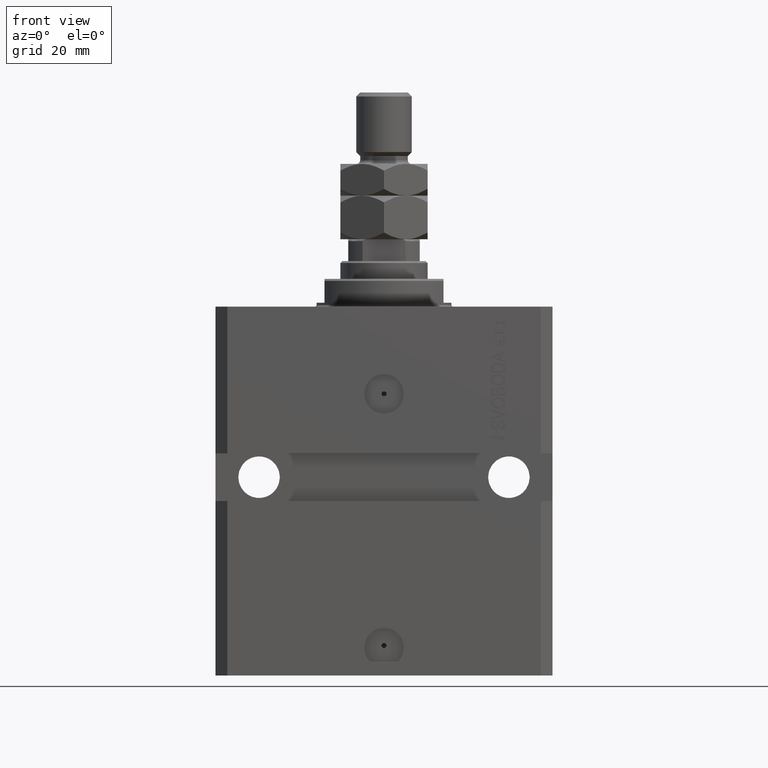
[diagram: clean part render]
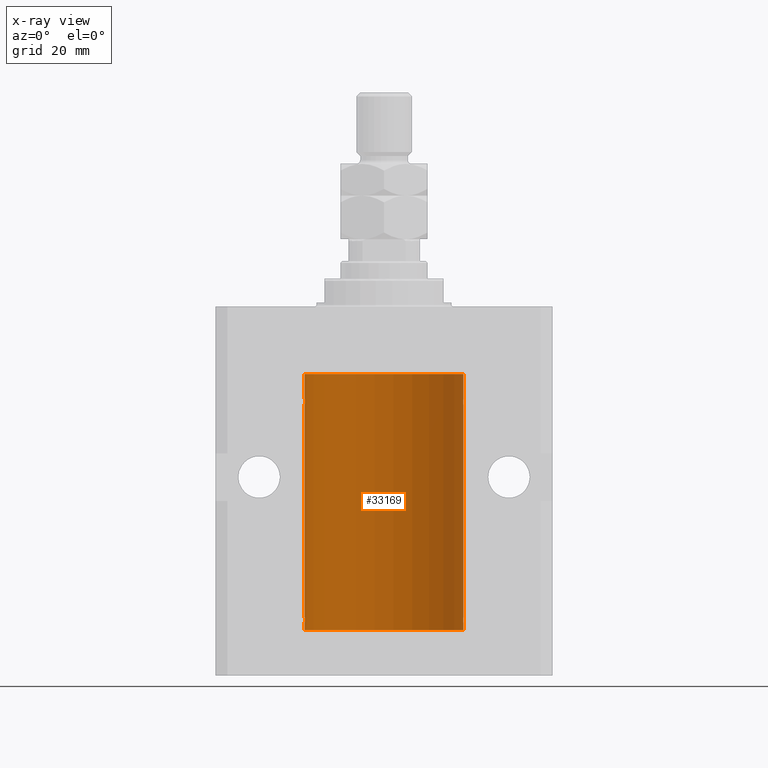
[diagram: x-ray — body ghosted, one internal face saturated and labeled with its STEP entity id]
A machine part, front view, then the same camera in x-ray: the body is ghosted and one INTERNAL B-rep face — a face not visible from any outside direction — is saturated and labeled: STEP entity #33169.
In plain terms, the highlighted cylindrical surface (partial cylindrical patch) has radius 20 mm, axis along (0, 0, 1).
Its self-contained STEP definition (entity closure, byte-faithful):
#40 = VERTEX_POINT ( 'NONE', #42627 ) ;
#138 = CARTESIAN_POINT ( 'NONE',  ( 19.99023198964909298, 0.6250000000081508134, -23.99999999999910472 ) ) ;
#925 = CARTESIAN_POINT ( 'NONE',  ( -19.99023380173166231, 0.6249420416828462832, -23.83670793056396064 ) ) ;
#994 = CYLINDRICAL_SURFACE ( 'NONE', #39639, 20.00000000000000000 ) ;
#1484 = CARTESIAN_POINT ( 'NONE',  ( -20.00000000000010303, 3.580159286679549072E-13, -79.62500000000332534 ) ) ;
#1937 = CARTESIAN_POINT ( 'NONE',  ( -20.00000000000000000, 2.449293598294706513E-15, -81.59999999999999432 ) ) ;
#2089 = CARTESIAN_POINT ( 'NONE',  ( 19.99023198964936299, 0.6249999999995806688, -78.83696384779808852 ) ) ;
#2495 = CIRCLE ( 'NONE', #32960, 20.00000000000000000 ) ;
#2841 = CARTESIAN_POINT ( 'NONE',  ( 19.99999999999999645, 0.1631318418333158327, -78.37500000000015632 ) ) ;
#3412 = CARTESIAN_POINT ( 'NONE',  ( 20.00000000000010303, 3.555666340528858977E-13, -23.37499999999667111 ) ) ;
#3795 = CARTESIAN_POINT ( 'NONE',  ( 19.99023198964909298, 0.6250000000081574747, -78.99999999999911893 ) ) ;
#4526 = DIRECTION ( 'NONE',  ( -0.000000000000000000, -0.000000000000000000, 1.000000000000000000 ) ) ;
#4756 = CARTESIAN_POINT ( 'NONE',  ( -19.99947377218718003, 0.1636439183262797525, -78.39126364004653169 ) ) ;
#4761 = FACE_OUTER_BOUND ( 'NONE', #22795, .T. ) ;
#4942 = CARTESIAN_POINT ( 'NONE',  ( -19.99766197842594906, 0.3150331617867667688, -23.45402070102505476 ) ) ;
#4978 = ORIENTED_EDGE ( 'NONE', *, *, #44810, .T. ) ;
#5005 = CARTESIAN_POINT ( 'NONE',  ( -19.99769349528941831, 0.3253804398728615266, -79.55855820727680339 ) ) ;
#6228 = VERTEX_POINT ( 'NONE', #47035 ) ;
#6354 = CARTESIAN_POINT ( 'NONE',  ( 19.99023198964909298, 0.6250000000081574747, -78.99999999999911893 ) ) ;
#6644 = EDGE_CURVE ( 'NONE', #48494, #6228, #2495, .T. ) ;
#6867 = DIRECTION ( 'NONE',  ( 1.000000000000000000, 0.000000000000000000, 0.000000000000000000 ) ) ;
#7110 = CARTESIAN_POINT ( 'NONE',  ( 0.000000000000000000, 0.000000000000000000, -81.59999999999999432 ) ) ;
#7122 = VECTOR ( 'NONE', #14378, 1000.000000000000000 ) ;
#7804 = CARTESIAN_POINT ( 'NONE',  ( 19.99638788807192924, 0.3844440352705359998, -79.49948058986481669 ) ) ;
#8201 = ORIENTED_EDGE ( 'NONE', *, *, #39548, .T. ) ;
#8530 = CARTESIAN_POINT ( 'NONE',  ( -19.99999999999999289, 0.08259581631026131909, -78.37499999999998579 ) ) ;
#9018 = CARTESIAN_POINT ( 'NONE',  ( -19.99766197842594551, 0.3150331617867603295, -78.45402070102504410 ) ) ;
#9205 = DIRECTION ( 'NONE',  ( -0.000000000000000000, -0.000000000000000000, 1.000000000000000000 ) ) ;
#10191 = CARTESIAN_POINT ( 'NONE',  ( -20.00000000000000000, 2.449293598294706513E-15, -81.59999999999999432 ) ) ;
#10235 = ORIENTED_EDGE ( 'NONE', *, *, #45649, .T. ) ;
#10545 = CARTESIAN_POINT ( 'NONE',  ( -20.00000000000000000, 2.449293598294706513E-15, -81.59999999999999432 ) ) ;
#10654 = CARTESIAN_POINT ( 'NONE',  ( 19.99947351343144675, 0.1636818329565319363, -24.60872855715643936 ) ) ;
#10842 = LINE ( 'NONE', #34195, #7122 ) ;
#10928 = VECTOR ( 'NONE', #9205, 1000.000000000000000 ) ;
#11328 = VERTEX_POINT ( 'NONE', #49406 ) ;
#11396 = CARTESIAN_POINT ( 'NONE',  ( 19.99999999999999645, 0.08261455565447869964, -24.62499999999998579 ) ) ;
#12299 = CARTESIAN_POINT ( 'NONE',  ( -20.00000000000000355, 0.1631688615953343080, -79.62499999999984368 ) ) ;
#12481 = CARTESIAN_POINT ( 'NONE',  ( -20.00000000000010303, 3.580159278407742946E-13, -24.62500000000332889 ) ) ;
#12772 = CARTESIAN_POINT ( 'NONE',  ( 0.000000000000000000, 0.000000000000000000, -17.00000000000000000 ) ) ;
#13259 = CARTESIAN_POINT ( 'NONE',  ( 20.00000000000000000, 0.000000000000000000, -81.59999999999999432 ) ) ;
#13512 = VERTEX_POINT ( 'NONE', #29579 ) ;
#13631 = CARTESIAN_POINT ( 'NONE',  ( 20.00000000000010303, 3.555666352936568165E-13, -78.37499999999667466 ) ) ;
#13691 = DIRECTION ( 'NONE',  ( -0.000000000000000000, -0.000000000000000000, 1.000000000000000000 ) ) ;
#14139 = VERTEX_POINT ( 'NONE', #41747 ) ;
#14270 = DIRECTION ( 'NONE',  ( -0.000000000000000000, -0.000000000000000000, 1.000000000000000000 ) ) ;
#14378 = DIRECTION ( 'NONE',  ( -0.000000000000000000, -0.000000000000000000, 1.000000000000000000 ) ) ;
#15059 = ORIENTED_EDGE ( 'NONE', *, *, #29766, .F. ) ;
#15488 = EDGE_CURVE ( 'NONE', #24688, #33742, #17039, .T. ) ;
#16265 = CARTESIAN_POINT ( 'NONE',  ( -19.99023018003212471, 0.6250578794725500931, -24.16284809704970371 ) ) ;
#16330 = CARTESIAN_POINT ( 'NONE',  ( -19.99023380173166231, 0.6249420416828449509, -78.83670793056396064 ) ) ;
#16512 = CARTESIAN_POINT ( 'NONE',  ( -19.99256581701871482, 0.5573276956902001311, -23.67348565770948809 ) ) ;
#16578 = CARTESIAN_POINT ( 'NONE',  ( -19.99638934703457238, 0.3843678041337651452, -78.50046362978099523 ) ) ;
#16699 = CARTESIAN_POINT ( 'NONE',  ( 19.99023198964909298, 0.6250000000081574747, -78.99999999999911893 ) ) ;
#16952 = EDGE_CURVE ( 'NONE', #32065, #40, #36194, .T. ) ;
#17039 = B_SPLINE_CURVE_WITH_KNOTS ( 'NONE', 3,
 ( #38909, #8530, #4756, #9018, #16578, #24101, #16330, #31627, #24355, #5005, #12299, #1484 ),
 .UNSPECIFIED., .F., .F.,
 ( 4, 2, 2, 2, 2, 4 ),
 ( 1.522880481566060999E-18, 0.0002442693137305179392, 0.0004885386274610343605, 0.0009770772549220966934, 0.001465615882383158918, 0.001954154509844221576 ),
 .UNSPECIFIED. ) ;
#17242 = B_SPLINE_CURVE_WITH_KNOTS ( 'NONE', 3,
 ( #138, #26786, #41836, #34539, #33565, #3412 ),
 .UNSPECIFIED., .F., .F.,
 ( 4, 2, 4 ),
 ( 0.0009772989342736214998, 0.001465726722058845102, 0.001954154509844068920 ),
 .UNSPECIFIED. ) ;
#17305 = DIRECTION ( 'NONE',  ( 0.000000000000000000, 0.000000000000000000, 1.000000000000000000 ) ) ;
#17741 = ORIENTED_EDGE ( 'NONE', *, *, #37810, .F. ) ;
#17986 = LINE ( 'NONE', #10191, #21623 ) ;
#18733 = VECTOR ( 'NONE', #30372, 1000.000000000000000 ) ;
#19615 = CARTESIAN_POINT ( 'NONE',  ( 19.99947351343144319, 0.1636818329565372654, -79.60872855715646779 ) ) ;
#19784 = CARTESIAN_POINT ( 'NONE',  ( -19.99638934703457593, 0.3843678041337688644, -23.50046362978100944 ) ) ;
#20093 = CARTESIAN_POINT ( 'NONE',  ( 0.000000000000000000, 0.000000000000000000, -81.59999999999999432 ) ) ;
#20552 = ORIENTED_EDGE ( 'NONE', *, *, #36848, .T. ) ;
#21410 = CIRCLE ( 'NONE', #45493, 20.00000000000000000 ) ;
#21529 = LINE ( 'NONE', #44640, #10928 ) ;
#21623 = VECTOR ( 'NONE', #13691, 1000.000000000000000 ) ;
#21939 = CARTESIAN_POINT ( 'NONE',  ( 19.99769474220011034, 0.3253030616682413001, -78.44140633897630721 ) ) ;
#21977 = CARTESIAN_POINT ( 'NONE',  ( 20.00000000000000000, 1.042771508482559297E-15, -24.62500000000000000 ) ) ;
#22229 = CARTESIAN_POINT ( 'NONE',  ( 19.99766100389832957, 0.3150982863324730543, -24.54594438241278453 ) ) ;
#22470 = CARTESIAN_POINT ( 'NONE',  ( 19.99638788807192924, 0.3844440352705356112, -24.49948058986480603 ) ) ;
#22795 = EDGE_LOOP ( 'NONE', ( #49395, #17741, #20552, #4978, #35064, #10235, #47956, #8201, #22998, #32330, #43364, #48487, #15059, #41424 ) ) ;
#22967 = CARTESIAN_POINT ( 'NONE',  ( 19.99023198964933812, 0.6250000000002681189, -24.16311014829328130 ) ) ;
#22998 = ORIENTED_EDGE ( 'NONE', *, *, #30047, .T. ) ;
#23791 = CARTESIAN_POINT ( 'NONE',  ( -20.00000000000000000, -1.124177324826063808E-14, -78.37500000000000000 ) ) ;
#23801 = CARTESIAN_POINT ( 'NONE',  ( -19.99999999999999645, 0.08259581631026780002, -23.37500000000000000 ) ) ;
#24101 = CARTESIAN_POINT ( 'NONE',  ( -19.99256581701871838, 0.5573276956901996870, -78.67348565770949165 ) ) ;
#24355 = CARTESIAN_POINT ( 'NONE',  ( -19.99253506710754991, 0.5587120480776742726, -79.32511620830248944 ) ) ;
#24688 = VERTEX_POINT ( 'NONE', #23791 ) ;
#25072 = CARTESIAN_POINT ( 'NONE',  ( -20.00000000000010303, 3.580159278407742946E-13, -24.62500000000332889 ) ) ;
#25221 = B_SPLINE_CURVE_WITH_KNOTS ( 'NONE', 3,
 ( #41724, #42465, #19615, #46501, #7804, #34428, #27393, #3795 ),
 .UNSPECIFIED., .F., .F.,
 ( 4, 2, 2, 4 ),
 ( 3.944467879762244826E-18, 0.0002443247335684012008, 0.0004886494671367983900, 0.0009772989342736221503 ),
 .UNSPECIFIED. ) ;
#26735 = CARTESIAN_POINT ( 'NONE',  ( 19.99023198964909298, 0.6250000000081508134, -23.99999999999910472 ) ) ;
#26786 = CARTESIAN_POINT ( 'NONE',  ( 19.99023198964935588, 0.6249999999995746736, -23.83696384779806721 ) ) ;
#27393 = CARTESIAN_POINT ( 'NONE',  ( 19.99023198964934167, 0.6250000000002757794, -79.16311014829327064 ) ) ;
#28059 = CARTESIAN_POINT ( 'NONE',  ( -20.00000000000000000, -2.867584836844214272E-15, -23.37500000000000000 ) ) ;
#29579 = CARTESIAN_POINT ( 'NONE',  ( 20.00000000000000000, -4.058908006348821872E-15, -79.62500000000000000 ) ) ;
#29766 = EDGE_CURVE ( 'NONE', #24688, #30848, #33157, .T. ) ;
#30047 = EDGE_CURVE ( 'NONE', #14139, #48494, #43412, .T. ) ;
#30372 = DIRECTION ( 'NONE',  ( -0.000000000000000000, -0.000000000000000000, 1.000000000000000000 ) ) ;
#30848 = VERTEX_POINT ( 'NONE', #25072 ) ;
#31565 = CARTESIAN_POINT ( 'NONE',  ( -20.00000000000000000, 0.1631688615953320320, -24.62499999999985434 ) ) ;
#31627 = CARTESIAN_POINT ( 'NONE',  ( -19.99023018003212471, 0.6250578794725522025, -79.16284809704971792 ) ) ;
#32065 = VERTEX_POINT ( 'NONE', #48348 ) ;
#32330 = ORIENTED_EDGE ( 'NONE', *, *, #6644, .T. ) ;
#32960 = AXIS2_PLACEMENT_3D ( 'NONE', #12772, #17305, #47456 ) ;
#32993 = CARTESIAN_POINT ( 'NONE',  ( 20.00000000000000000, 0.000000000000000000, -81.59999999999999432 ) ) ;
#33157 = LINE ( 'NONE', #10545, #18733 ) ;
#33169 = ADVANCED_FACE ( 'NONE', ( #4761 ), #994, .F. ) ;
#33565 = CARTESIAN_POINT ( 'NONE',  ( 19.99999999999999645, 0.1631318418333146114, -23.37500000000016698 ) ) ;
#33648 = VERTEX_POINT ( 'NONE', #1937 ) ;
#33742 = VERTEX_POINT ( 'NONE', #38008 ) ;
#34195 = CARTESIAN_POINT ( 'NONE',  ( 20.00000000000000000, 0.000000000000000000, -81.59999999999999432 ) ) ;
#34218 = VERTEX_POINT ( 'NONE', #37130 ) ;
#34428 = CARTESIAN_POINT ( 'NONE',  ( 19.99256353007439202, 0.5574106582031174151, -79.32639035180115172 ) ) ;
#34539 = CARTESIAN_POINT ( 'NONE',  ( 19.99769474220010679, 0.3253030616682399678, -23.44140633897632142 ) ) ;
#34731 = VECTOR ( 'NONE', #14270, 1000.000000000000000 ) ;
#35064 = ORIENTED_EDGE ( 'NONE', *, *, #47587, .T. ) ;
#35090 = CARTESIAN_POINT ( 'NONE',  ( -19.99253506710754991, 0.5587120480776751608, -24.32511620830248589 ) ) ;
#35579 = CARTESIAN_POINT ( 'NONE',  ( -19.99769349528941120, 0.3253804398728645242, -24.55855820727680339 ) ) ;
#36194 = B_SPLINE_CURVE_WITH_KNOTS ( 'NONE', 3,
 ( #21977, #11396, #10654, #22229, #22470, #49105, #22967, #26735 ),
 .UNSPECIFIED., .F., .F.,
 ( 4, 2, 2, 4 ),
 ( 1.013370767385449693E-18, 0.0002443247335684061339, 0.0004886494671368111836, 0.0009772989342736214998 ),
 .UNSPECIFIED. ) ;
#36231 = CARTESIAN_POINT ( 'NONE',  ( 19.99253733128256627, 0.5586305947779004466, -78.67476036735259015 ) ) ;
#36440 = EDGE_CURVE ( 'NONE', #34218, #30848, #39594, .T. ) ;
#36503 = EDGE_CURVE ( 'NONE', #34218, #6228, #21529, .T. ) ;
#36848 = EDGE_CURVE ( 'NONE', #43367, #13512, #43823, .T. ) ;
#37130 = CARTESIAN_POINT ( 'NONE',  ( -20.00000000000000000, -2.867584836844214272E-15, -23.37500000000000000 ) ) ;
#37252 = DIRECTION ( 'NONE',  ( 0.000000000000000000, 0.000000000000000000, 1.000000000000000000 ) ) ;
#37565 = CARTESIAN_POINT ( 'NONE',  ( 20.00000000000000000, 0.000000000000000000, -17.00000000000000000 ) ) ;
#37810 = EDGE_CURVE ( 'NONE', #43367, #33648, #21410, .T. ) ;
#38008 = CARTESIAN_POINT ( 'NONE',  ( -20.00000000000010303, 3.580159286679549072E-13, -79.62500000000332534 ) ) ;
#38909 = CARTESIAN_POINT ( 'NONE',  ( -20.00000000000000000, -1.124177324826063808E-14, -78.37500000000000000 ) ) ;
#39537 = DIRECTION ( 'NONE',  ( -0.000000000000000000, -0.000000000000000000, 1.000000000000000000 ) ) ;
#39548 = EDGE_CURVE ( 'NONE', #40, #14139, #17242, .T. ) ;
#39594 = B_SPLINE_CURVE_WITH_KNOTS ( 'NONE', 3,
 ( #28059, #23801, #39597, #4942, #19784, #16512, #925, #16265, #35090, #35579, #31565, #12481 ),
 .UNSPECIFIED., .F., .F.,
 ( 4, 2, 2, 2, 2, 4 ),
 ( 5.848927291235706941E-19, 0.0002442693137305304075, 0.0004885386274610601645, 0.0009770772549221123059, 0.001465615882383164339, 0.001954154509844215938 ),
 .UNSPECIFIED. ) ;
#39597 = CARTESIAN_POINT ( 'NONE',  ( -19.99947377218718714, 0.1636439183262877461, -23.39126364004656011 ) ) ;
#39639 = AXIS2_PLACEMENT_3D ( 'NONE', #20093, #4526, #42707 ) ;
#40028 = CARTESIAN_POINT ( 'NONE',  ( 20.00000000000000000, 0.000000000000000000, -81.59999999999999432 ) ) ;
#41424 = ORIENTED_EDGE ( 'NONE', *, *, #15488, .T. ) ;
#41724 = CARTESIAN_POINT ( 'NONE',  ( 20.00000000000000000, -4.058908006348821872E-15, -79.62500000000000000 ) ) ;
#41747 = CARTESIAN_POINT ( 'NONE',  ( 20.00000000000010303, 3.555666340528858977E-13, -23.37499999999667111 ) ) ;
#41836 = CARTESIAN_POINT ( 'NONE',  ( 19.99253733128256272, 0.5586305947778931191, -23.67476036735258305 ) ) ;
#42465 = CARTESIAN_POINT ( 'NONE',  ( 19.99999999999999645, 0.08261455565447825555, -79.62499999999997158 ) ) ;
#42627 = CARTESIAN_POINT ( 'NONE',  ( 19.99023198964909298, 0.6250000000081508134, -23.99999999999910472 ) ) ;
#42707 = DIRECTION ( 'NONE',  ( 1.000000000000000000, 0.000000000000000000, 0.000000000000000000 ) ) ;
#43276 = VERTEX_POINT ( 'NONE', #16699 ) ;
#43364 = ORIENTED_EDGE ( 'NONE', *, *, #36503, .F. ) ;
#43367 = VERTEX_POINT ( 'NONE', #32993 ) ;
#43412 = LINE ( 'NONE', #13259, #34731 ) ;
#43823 = LINE ( 'NONE', #40028, #44653 ) ;
#44640 = CARTESIAN_POINT ( 'NONE',  ( -20.00000000000000000, 2.449293598294706513E-15, -81.59999999999999432 ) ) ;
#44653 = VECTOR ( 'NONE', #39537, 1000.000000000000000 ) ;
#44810 = EDGE_CURVE ( 'NONE', #13512, #43276, #25221, .T. ) ;
#45493 = AXIS2_PLACEMENT_3D ( 'NONE', #7110, #37252, #6867 ) ;
#45649 = EDGE_CURVE ( 'NONE', #11328, #32065, #10842, .T. ) ;
#46068 = B_SPLINE_CURVE_WITH_KNOTS ( 'NONE', 3,
 ( #6354, #2089, #36231, #21939, #2841, #13631 ),
 .UNSPECIFIED., .F., .F.,
 ( 4, 2, 4 ),
 ( 0.0009772989342736221503, 0.001465726722058849005, 0.001954154509844075859 ),
 .UNSPECIFIED. ) ;
#46501 = CARTESIAN_POINT ( 'NONE',  ( 19.99766100389833312, 0.3150982863324784944, -79.54594438241281296 ) ) ;
#47035 = CARTESIAN_POINT ( 'NONE',  ( -20.00000000000000000, 2.449293598294706513E-15, -17.00000000000000000 ) ) ;
#47310 = EDGE_CURVE ( 'NONE', #33648, #33742, #17986, .T. ) ;
#47456 = DIRECTION ( 'NONE',  ( 1.000000000000000000, 0.000000000000000000, 0.000000000000000000 ) ) ;
#47587 = EDGE_CURVE ( 'NONE', #43276, #11328, #46068, .T. ) ;
#47956 = ORIENTED_EDGE ( 'NONE', *, *, #16952, .T. ) ;
#48348 = CARTESIAN_POINT ( 'NONE',  ( 20.00000000000000000, 1.042771508482559297E-15, -24.62500000000000000 ) ) ;
#48487 = ORIENTED_EDGE ( 'NONE', *, *, #36440, .T. ) ;
#48494 = VERTEX_POINT ( 'NONE', #37565 ) ;
#49105 = CARTESIAN_POINT ( 'NONE',  ( 19.99256353007439202, 0.5574106582031151946, -24.32639035180115172 ) ) ;
#49395 = ORIENTED_EDGE ( 'NONE', *, *, #47310, .F. ) ;
#49406 = CARTESIAN_POINT ( 'NONE',  ( 20.00000000000010303, 3.555666352936568165E-13, -78.37499999999667466 ) ) ;